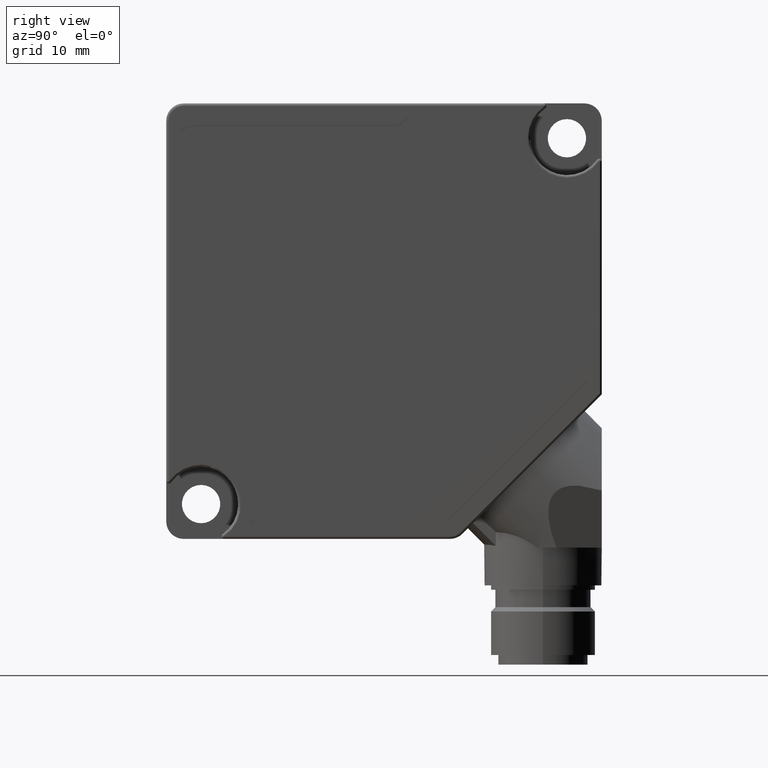
[diagram: clean part render]
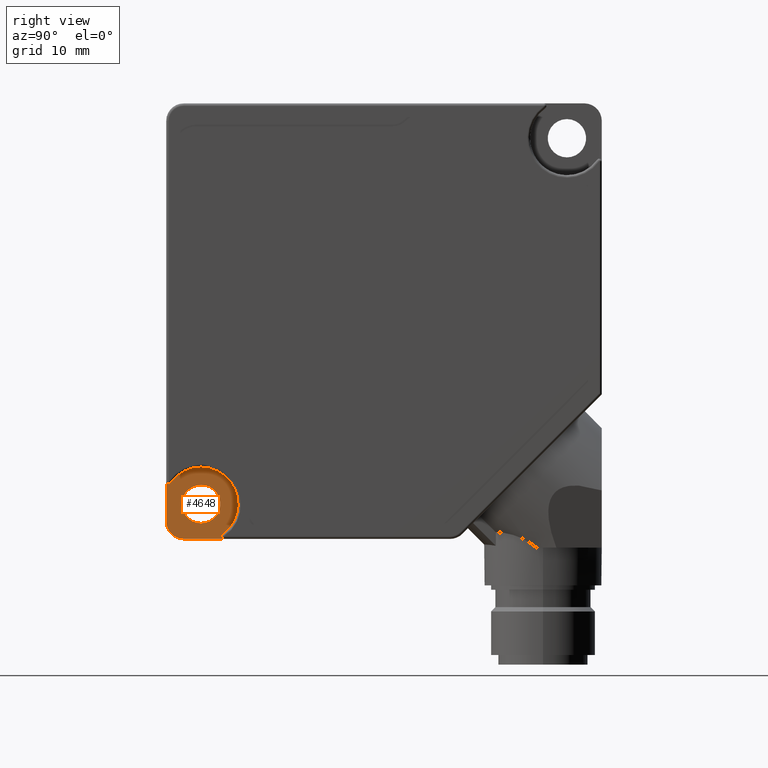
[diagram: same view with one face highlighted and labeled with its STEP entity id]
A machine part, right view. The second image highlights one B-rep face of the part: STEP entity #4648.
In plain terms, the highlighted planar face has unit normal (1, 0, -0).
Its self-contained STEP definition (entity closure, byte-faithful):
#52 = CARTESIAN_POINT ( 'NONE',  ( 4.000000000000000000, -21.00000000000180800, -21.00000000000181200 ) ) ;
#58 = CIRCLE ( 'NONE', #12343, 4.249999999999563000 ) ;
#802 = EDGE_CURVE ( 'NONE', #9943, #4711, #4211, .T. ) ;
#888 = DIRECTION ( 'NONE',  ( 0.0000000000000000000, 0.0000000000000000000, -1.000000000000000000 ) ) ;
#998 = DIRECTION ( 'NONE',  ( 0.0000000000000000000, 0.0000000000000000000, -1.000000000000000000 ) ) ;
#1164 = DIRECTION ( 'NONE',  ( 0.0000000000000000000, 0.0000000000000000000, -1.000000000000000000 ) ) ;
#1911 = EDGE_CURVE ( 'NONE', #2005, #5504, #11317, .T. ) ;
#2005 = VERTEX_POINT ( 'NONE', #7274 ) ;
#2040 = DIRECTION ( 'NONE',  ( -1.000000000000000000, 0.0000000000000000000, 0.0000000000000000000 ) ) ;
#2442 = CARTESIAN_POINT ( 'NONE',  ( 4.000000000000000000, -24.99999999999998200, -23.00000000000000000 ) ) ;
#2453 = VERTEX_POINT ( 'NONE', #4452 ) ;
#2512 = CARTESIAN_POINT ( 'NONE',  ( 4.000000000000000000, -21.00000000000180800, -23.20000000000306500 ) ) ;
#2560 = CARTESIAN_POINT ( 'NONE',  ( 4.000000000000000000, -24.99999999999997500, -18.35188746462688800 ) ) ;
#2582 = VECTOR ( 'NONE', #5359, 1000.000000000000000 ) ;
#2677 = EDGE_LOOP ( 'NONE', ( #9158, #4078 ) ) ;
#2712 = AXIS2_PLACEMENT_3D ( 'NONE', #12998, #6517, #14119 ) ;
#2717 = CIRCLE ( 'NONE', #4154, 4.249999999999563000 ) ;
#3479 = CIRCLE ( 'NONE', #11603, 2.200000000001253000 ) ;
#4078 = ORIENTED_EDGE ( 'NONE', *, *, #1911, .T. ) ;
#4122 = CIRCLE ( 'NONE', #5931, 2.000000000000001800 ) ;
#4154 = AXIS2_PLACEMENT_3D ( 'NONE', #12182, #5699, #13280 ) ;
#4211 = CIRCLE ( 'NONE', #9330, 0.3000000000003347200 ) ;
#4218 = AXIS2_PLACEMENT_3D ( 'NONE', #4912, #12514, #6020 ) ;
#4257 = VERTEX_POINT ( 'NONE', #2442 ) ;
#4297 = VECTOR ( 'NONE', #4480, 1000.000000000000000 ) ;
#4431 = CARTESIAN_POINT ( 'NONE',  ( 4.000000000000000000, -24.45604395604376400, -18.52648829113468700 ) ) ;
#4452 = CARTESIAN_POINT ( 'NONE',  ( 4.000000000000000000, -21.00000000000165900, -16.75000000000191100 ) ) ;
#4480 = DIRECTION ( 'NONE',  ( 0.0000000000000000000, 1.000000000000000000, 0.0000000000000000000 ) ) ;
#4644 = PLANE ( 'NONE',  #7714 ) ;
#4648 = ADVANCED_FACE ( 'NONE', ( #5805, #11585 ), #4644, .T. ) ;
#4711 = VERTEX_POINT ( 'NONE', #2560 ) ;
#4912 = CARTESIAN_POINT ( 'NONE',  ( 4.000000000000000000, -21.00000000000180800, -21.00000000000181200 ) ) ;
#5139 = EDGE_CURVE ( 'NONE', #8683, #12364, #12383, .T. ) ;
#5359 = DIRECTION ( 'NONE',  ( 0.0000000000000000000, -1.565608403961334600E-015, -1.000000000000000000 ) ) ;
#5504 = VERTEX_POINT ( 'NONE', #2512 ) ;
#5534 = LINE ( 'NONE', #9655, #2582 ) ;
#5699 = DIRECTION ( 'NONE',  ( 1.000000000000000000, -0.0000000000000000000, -0.0000000000000000000 ) ) ;
#5771 = EDGE_LOOP ( 'NONE', ( #12148, #11550, #13864, #12024, #8891, #10904, #9355 ) ) ;
#5805 = FACE_OUTER_BOUND ( 'NONE', #5771, .T. ) ;
#5822 = DIRECTION ( 'NONE',  ( 1.000000000000000000, 0.0000000000000000000, -0.0000000000000000000 ) ) ;
#5931 = AXIS2_PLACEMENT_3D ( 'NONE', #13991, #7519, #888 ) ;
#6020 = DIRECTION ( 'NONE',  ( 0.0000000000000000000, 0.0000000000000000000, -1.000000000000000000 ) ) ;
#6517 = DIRECTION ( 'NONE',  ( -1.000000000000000000, -0.0000000000000000000, -0.0000000000000000000 ) ) ;
#6729 = CARTESIAN_POINT ( 'NONE',  ( 4.000000000000000000, -18.52648829113482200, -24.45604395604355100 ) ) ;
#6734 = EDGE_CURVE ( 'NONE', #12364, #2453, #58, .T. ) ;
#7234 = LINE ( 'NONE', #8865, #4297 ) ;
#7274 = CARTESIAN_POINT ( 'NONE',  ( 4.000000000000000000, -21.00000000000180800, -18.80000000000055800 ) ) ;
#7519 = DIRECTION ( 'NONE',  ( 1.000000000000000000, 0.0000000000000000000, 0.0000000000000000000 ) ) ;
#7613 = DIRECTION ( 'NONE',  ( 1.000000000000000000, -0.0000000000000000000, -0.0000000000000000000 ) ) ;
#7714 = AXIS2_PLACEMENT_3D ( 'NONE', #12295, #5822, #13394 ) ;
#7770 = DIRECTION ( 'NONE',  ( -1.000000000000000000, -0.0000000000000000000, -0.0000000000000000000 ) ) ;
#8057 = CARTESIAN_POINT ( 'NONE',  ( 4.000000000000000000, -18.35188746462526400, -24.99999999999999600 ) ) ;
#8630 = CARTESIAN_POINT ( 'NONE',  ( 4.000000000000000000, -24.69999999999997400, -18.35188746462623000 ) ) ;
#8683 = VERTEX_POINT ( 'NONE', #8057 ) ;
#8865 = CARTESIAN_POINT ( 'NONE',  ( 4.000000000000000000, -24.99999999999998600, -25.00000000000000000 ) ) ;
#8891 = ORIENTED_EDGE ( 'NONE', *, *, #6734, .T. ) ;
#9158 = ORIENTED_EDGE ( 'NONE', *, *, #11804, .T. ) ;
#9172 = CARTESIAN_POINT ( 'NONE',  ( 4.000000000000000000, -22.99999999999998600, -25.00000000000000000 ) ) ;
#9330 = AXIS2_PLACEMENT_3D ( 'NONE', #8630, #2040, #9717 ) ;
#9355 = ORIENTED_EDGE ( 'NONE', *, *, #802, .T. ) ;
#9655 = CARTESIAN_POINT ( 'NONE',  ( 4.000000000000000000, -24.99999999999998600, -25.00000000000000000 ) ) ;
#9717 = DIRECTION ( 'NONE',  ( 0.0000000000000000000, 0.0000000000000000000, -1.000000000000000000 ) ) ;
#9729 = EDGE_CURVE ( 'NONE', #2453, #9943, #2717, .T. ) ;
#9943 = VERTEX_POINT ( 'NONE', #4431 ) ;
#10904 = ORIENTED_EDGE ( 'NONE', *, *, #9729, .T. ) ;
#11317 = CIRCLE ( 'NONE', #4218, 2.200000000001253000 ) ;
#11550 = ORIENTED_EDGE ( 'NONE', *, *, #13229, .T. ) ;
#11585 = FACE_BOUND ( 'NONE', #2677, .T. ) ;
#11603 = AXIS2_PLACEMENT_3D ( 'NONE', #52, #7770, #1164 ) ;
#11726 = EDGE_CURVE ( 'NONE', #4711, #4257, #5534, .T. ) ;
#11804 = EDGE_CURVE ( 'NONE', #5504, #2005, #3479, .T. ) ;
#11959 = VERTEX_POINT ( 'NONE', #9172 ) ;
#12024 = ORIENTED_EDGE ( 'NONE', *, *, #5139, .T. ) ;
#12148 = ORIENTED_EDGE ( 'NONE', *, *, #11726, .T. ) ;
#12182 = CARTESIAN_POINT ( 'NONE',  ( 4.000000000000000000, -21.00000000000165900, -21.00000000000147400 ) ) ;
#12295 = CARTESIAN_POINT ( 'NONE',  ( 4.000000000000000000, -18.35188746462525700, -24.69999999999898000 ) ) ;
#12343 = AXIS2_PLACEMENT_3D ( 'NONE', #14096, #7613, #998 ) ;
#12364 = VERTEX_POINT ( 'NONE', #6729 ) ;
#12383 = CIRCLE ( 'NONE', #2712, 0.3000000000010182300 ) ;
#12514 = DIRECTION ( 'NONE',  ( -1.000000000000000000, -0.0000000000000000000, -0.0000000000000000000 ) ) ;
#12899 = EDGE_CURVE ( 'NONE', #11959, #8683, #7234, .T. ) ;
#12998 = CARTESIAN_POINT ( 'NONE',  ( 4.000000000000000000, -18.35188746462525700, -24.69999999999898000 ) ) ;
#13229 = EDGE_CURVE ( 'NONE', #4257, #11959, #4122, .T. ) ;
#13280 = DIRECTION ( 'NONE',  ( 0.0000000000000000000, 0.0000000000000000000, -1.000000000000000000 ) ) ;
#13394 = DIRECTION ( 'NONE',  ( 0.0000000000000000000, 0.0000000000000000000, 1.000000000000000000 ) ) ;
#13864 = ORIENTED_EDGE ( 'NONE', *, *, #12899, .T. ) ;
#13991 = CARTESIAN_POINT ( 'NONE',  ( 4.000000000000000000, -22.99999999999998600, -23.00000000000000000 ) ) ;
#14096 = CARTESIAN_POINT ( 'NONE',  ( 4.000000000000000000, -21.00000000000165900, -21.00000000000147400 ) ) ;
#14119 = DIRECTION ( 'NONE',  ( 0.0000000000000000000, 0.0000000000000000000, 1.000000000000000000 ) ) ;